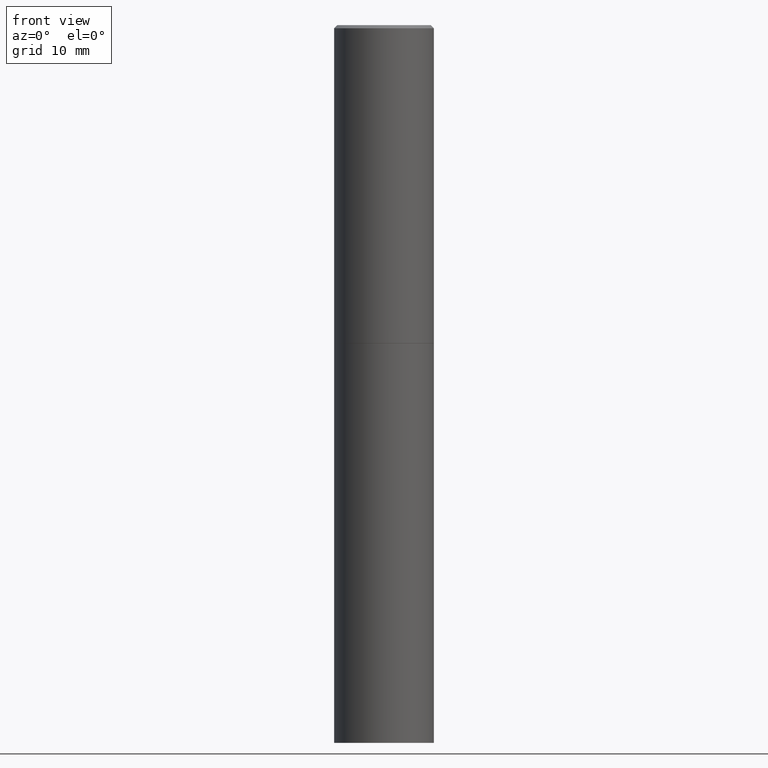
[diagram: clean part render]
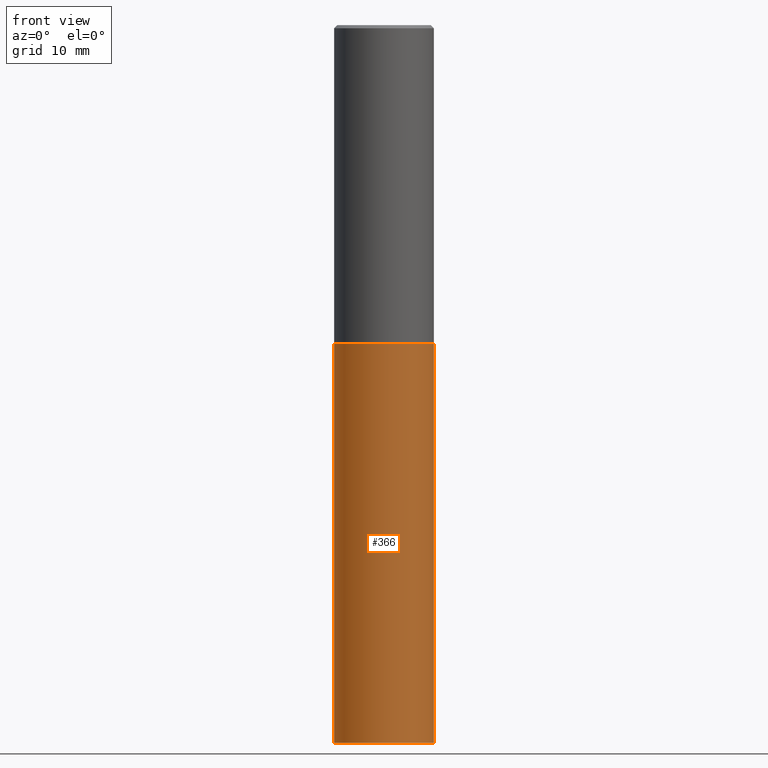
[diagram: same view with one face highlighted and labeled with its STEP entity id]
A machine part, front view. The second image highlights one B-rep face of the part: STEP entity #366.
In plain terms, the highlighted cylindrical surface (partial cylindrical patch) has radius 7.9997 mm, axis along (-0, 0, 1).
Its self-contained STEP definition (entity closure, byte-faithful):
#1 = CIRCLE ( 'NONE', #321, 0.3149500000000000077 ) ;
#35 = DIRECTION ( 'NONE',  ( 1.000000000000000000, -6.982962677686269866E-15, 0.000000000000000000 ) ) ;
#36 = DIRECTION ( 'NONE',  ( 1.000000000000000000, -6.982962677686266711E-15, 4.876176775795936353E-29 ) ) ;
#37 = EDGE_LOOP ( 'NONE', ( #179, #98, #99, #154 ) ) ;
#59 = CARTESIAN_POINT ( 'NONE',  ( 1.107210456688382298E-28, -1.580803090974622389E-14, -4.527599999999999625 ) ) ;
#80 = AXIS2_PLACEMENT_3D ( 'NONE', #305, #277, #36 ) ;
#88 = AXIS2_PLACEMENT_3D ( 'NONE', #59, #230, #306 ) ;
#92 = VECTOR ( 'NONE', #165, 39.37007874015748143 ) ;
#98 = ORIENTED_EDGE ( 'NONE', *, *, #283, .T. ) ;
#99 = ORIENTED_EDGE ( 'NONE', *, *, #212, .T. ) ;
#105 = LINE ( 'NONE', #363, #92 ) ;
#119 = CARTESIAN_POINT ( 'NONE',  ( 4.910256815939134188E-29, -7.010545380263150133E-15, -2.007899999999999352 ) ) ;
#121 = CARTESIAN_POINT ( 'NONE',  ( 0.3149500000000000077, -1.800731500508351534E-14, -4.527599999999999625 ) ) ;
#128 = VERTEX_POINT ( 'NONE', #186 ) ;
#154 = ORIENTED_EDGE ( 'NONE', *, *, #300, .F. ) ;
#164 = EDGE_CURVE ( 'NONE', #183, #128, #296, .T. ) ;
#165 = DIRECTION ( 'NONE',  ( -2.445468806185136877E-29, 3.491481338843145188E-15, 1.000000000000000000 ) ) ;
#179 = ORIENTED_EDGE ( 'NONE', *, *, #164, .F. ) ;
#183 = VERTEX_POINT ( 'NONE', #190 ) ;
#186 = CARTESIAN_POINT ( 'NONE',  ( -0.3149500000000000077, -9.171433798728249845E-15, -2.007899999999999352 ) ) ;
#190 = CARTESIAN_POINT ( 'NONE',  ( -0.3149500000000000077, -9.171433798728249845E-15, -4.527599999999999625 ) ) ;
#201 = VECTOR ( 'NONE', #219, 39.37007874015748143 ) ;
#207 = VERTEX_POINT ( 'NONE', #298 ) ;
#212 = EDGE_CURVE ( 'NONE', #350, #207, #105, .T. ) ;
#219 = DIRECTION ( 'NONE',  ( -2.445468806185136877E-29, 3.491481338843145188E-15, 1.000000000000000000 ) ) ;
#229 = DIRECTION ( 'NONE',  ( -2.445468806185136597E-29, 3.491481338843145583E-15, 1.000000000000000000 ) ) ;
#230 = DIRECTION ( 'NONE',  ( -2.445468806185136597E-29, 3.491481338843145583E-15, 1.000000000000000000 ) ) ;
#251 = CIRCLE ( 'NONE', #88, 0.3149500000000000077 ) ;
#277 = DIRECTION ( 'NONE',  ( -2.445468806185136597E-29, 3.491481338843145583E-15, 1.000000000000000000 ) ) ;
#283 = EDGE_CURVE ( 'NONE', #183, #350, #251, .T. ) ;
#296 = LINE ( 'NONE', #360, #201 ) ;
#298 = CARTESIAN_POINT ( 'NONE',  ( 0.3149500000000000077, -9.209829475600440793E-15, -2.007899999999999352 ) ) ;
#300 = EDGE_CURVE ( 'NONE', #128, #207, #1, .T. ) ;
#305 = CARTESIAN_POINT ( 'NONE',  ( 0.000000000000000000, 0.000000000000000000, 0.000000000000000000 ) ) ;
#306 = DIRECTION ( 'NONE',  ( 1.000000000000000000, -6.982962677686269866E-15, 0.000000000000000000 ) ) ;
#308 = FACE_OUTER_BOUND ( 'NONE', #37, .T. ) ;
#321 = AXIS2_PLACEMENT_3D ( 'NONE', #119, #229, #35 ) ;
#350 = VERTEX_POINT ( 'NONE', #121 ) ;
#360 = CARTESIAN_POINT ( 'NONE',  ( -0.3149500000000000077, 2.237854346276435590E-15, -1.549218606675782676E-29 ) ) ;
#363 = CARTESIAN_POINT ( 'NONE',  ( 0.3149500000000000077, -2.199284095337289871E-15, 1.535751875536930130E-29 ) ) ;
#365 = CYLINDRICAL_SURFACE ( 'NONE', #80, 0.3149500000000000077 ) ;
#366 = ADVANCED_FACE ( 'NONE', ( #308 ), #365, .T. ) ;